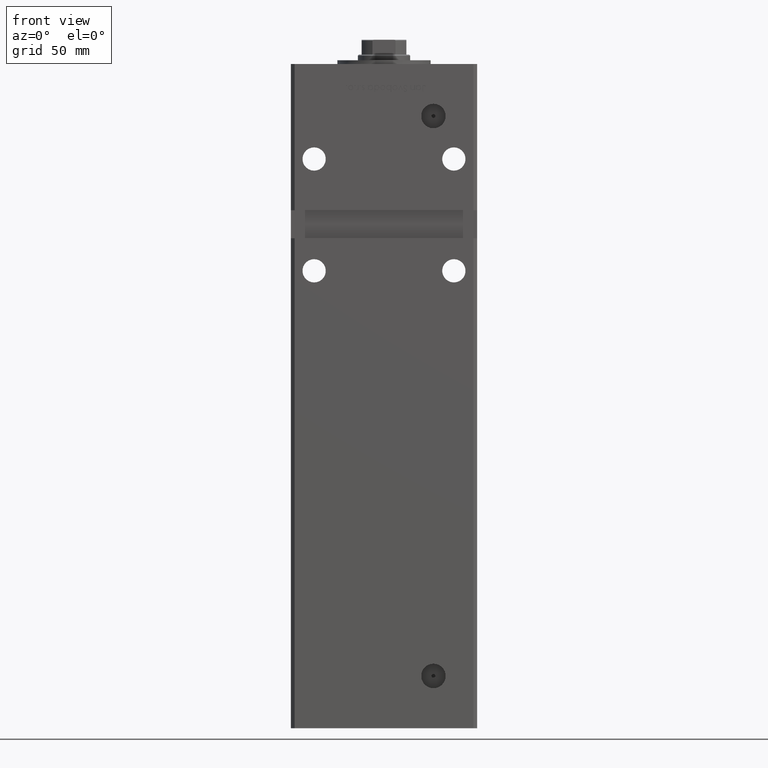
[diagram: clean part render]
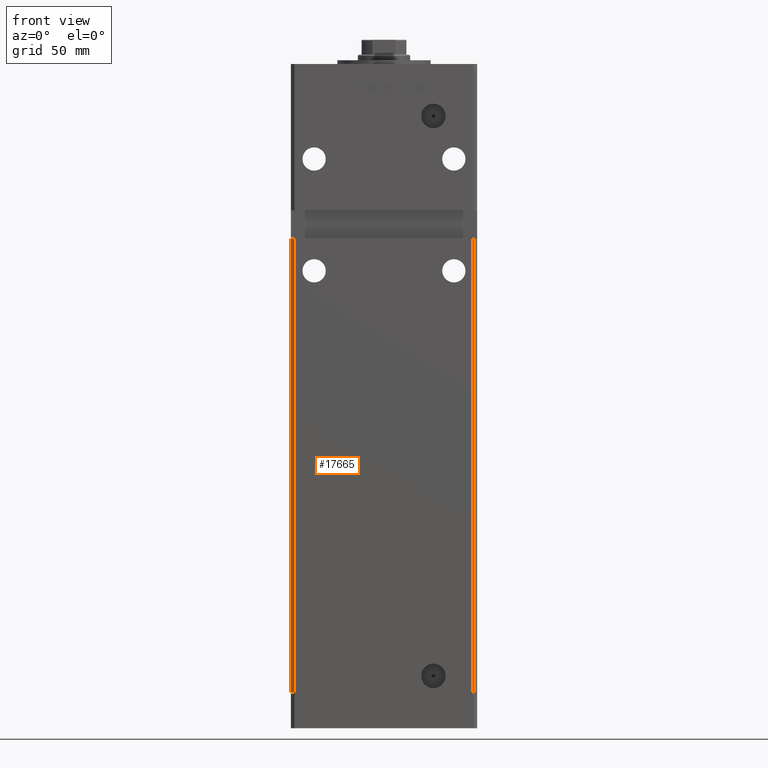
[diagram: same view with one face highlighted and labeled with its STEP entity id]
A machine part, front view. The second image highlights one B-rep face of the part: STEP entity #17665.
In plain terms, the highlighted planar face has unit normal (0.7071, 0.7071, 0).
Its self-contained STEP definition (entity closure, byte-faithful):
#22 = CARTESIAN_POINT ( 'NONE',  ( -49.99999999999998579, -41.49999999999999289, 244.0000000000000000 ) ) ;
#537 = VECTOR ( 'NONE', #48660, 1000.000000000000114 ) ;
#1317 = PLANE ( 'NONE',  #45943 ) ;
#1717 = CARTESIAN_POINT ( 'NONE',  ( -49.99999999999998579, -41.49999999999999289, 318.5000000000000000 ) ) ;
#1761 = VERTEX_POINT ( 'NONE', #5917 ) ;
#3419 = CARTESIAN_POINT ( 'NONE',  ( -47.99999999999998579, -43.50000000000000000, 318.5000000000000000 ) ) ;
#3843 = EDGE_CURVE ( 'NONE', #49866, #36447, #11791, .T. ) ;
#5917 = CARTESIAN_POINT ( 'NONE',  ( -49.99999999999998579, -41.49999999999999289, 0.000000000000000000 ) ) ;
#6162 = DIRECTION ( 'NONE',  ( -0.7071067811865474617, 0.7071067811865474617, 0.000000000000000000 ) ) ;
#8123 = EDGE_LOOP ( 'NONE', ( #46691, #47959, #18154, #35595 ) ) ;
#9613 = VERTEX_POINT ( 'NONE', #22 ) ;
#10207 = FACE_OUTER_BOUND ( 'NONE', #8123, .T. ) ;
#11791 = LINE ( 'NONE', #3419, #31140 ) ;
#11820 = VECTOR ( 'NONE', #45376, 1000.000000000000000 ) ;
#16383 = CARTESIAN_POINT ( 'NONE',  ( -49.99999999999998579, -41.49999999999999289, 0.000000000000000000 ) ) ;
#17665 = ADVANCED_FACE ( 'NONE', ( #10207 ), #1317, .F. ) ;
#17757 = DIRECTION ( 'NONE',  ( 0.7071067811865475727, 0.7071067811865475727, -0.000000000000000000 ) ) ;
#18154 = ORIENTED_EDGE ( 'NONE', *, *, #25767, .T. ) ;
#19894 = LINE ( 'NONE', #16383, #537 ) ;
#20836 = CARTESIAN_POINT ( 'NONE',  ( -47.99999999999998579, -43.50000000000000000, 0.000000000000000000 ) ) ;
#22681 = EDGE_CURVE ( 'NONE', #49866, #9613, #39795, .T. ) ;
#25767 = EDGE_CURVE ( 'NONE', #9613, #1761, #42620, .T. ) ;
#30978 = CARTESIAN_POINT ( 'NONE',  ( -49.99999999999998579, -41.49999999999999289, 244.0000000000000000 ) ) ;
#31140 = VECTOR ( 'NONE', #44848, 1000.000000000000000 ) ;
#31301 = CARTESIAN_POINT ( 'NONE',  ( -47.99999999999998579, -43.50000000000000000, 244.0000000000000000 ) ) ;
#35595 = ORIENTED_EDGE ( 'NONE', *, *, #48777, .T. ) ;
#36447 = VERTEX_POINT ( 'NONE', #20836 ) ;
#39795 = LINE ( 'NONE', #30978, #44367 ) ;
#42620 = LINE ( 'NONE', #1717, #11820 ) ;
#43017 = CARTESIAN_POINT ( 'NONE',  ( -49.99999999999998579, -41.49999999999999289, 318.5000000000000000 ) ) ;
#44367 = VECTOR ( 'NONE', #51636, 1000.000000000000114 ) ;
#44848 = DIRECTION ( 'NONE',  ( -0.000000000000000000, -0.000000000000000000, -1.000000000000000000 ) ) ;
#45376 = DIRECTION ( 'NONE',  ( -0.000000000000000000, -0.000000000000000000, -1.000000000000000000 ) ) ;
#45943 = AXIS2_PLACEMENT_3D ( 'NONE', #43017, #17757, #6162 ) ;
#46691 = ORIENTED_EDGE ( 'NONE', *, *, #3843, .F. ) ;
#47959 = ORIENTED_EDGE ( 'NONE', *, *, #22681, .T. ) ;
#48660 = DIRECTION ( 'NONE',  ( 0.7071067811865474617, -0.7071067811865474617, 0.000000000000000000 ) ) ;
#48777 = EDGE_CURVE ( 'NONE', #1761, #36447, #19894, .T. ) ;
#49866 = VERTEX_POINT ( 'NONE', #31301 ) ;
#51636 = DIRECTION ( 'NONE',  ( -0.7071067811865474617, 0.7071067811865474617, 0.000000000000000000 ) ) ;